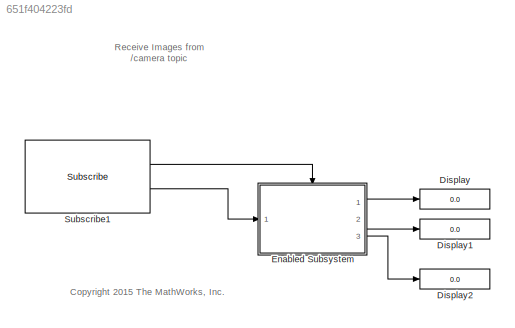
MODEL slx_651f404223fd
KIND model
CONFIG AbsTol = auto
CONFIG EnableMultiTasking = on
CONFIG FixedStep = auto
CONFIG MaxStep = auto
CONFIG MinStep = auto
CONFIG RelTol = 1e-3
CONFIG SampleTimeConstraint = Unconstrained
CONFIG Solver = VariableStepAuto
CONFIG SolverName = VariableStepAuto
CONFIG StartTime = 0.0
CONFIG StopTime = inf
WORKSPACE source: MAT-file member
WORKSPACE SL_ROS_VariableLengthArrays_MaxSizes: struct (value not decoded)
BLOCK [Display] Display
  Decimation = 1
  Ports = [1]
BLOCK [Display] Display1
  Decimation = 1
  Ports = [1]
BLOCK [Display] Display2
  Decimation = 1
  Ports = [1]
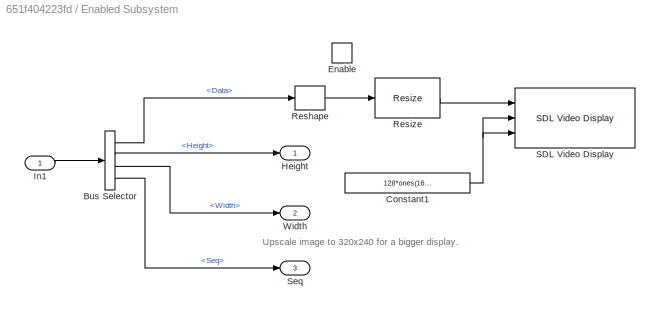
BLOCK [SubSystem] Enabled Subsystem
  Ports = [1, 3, 1]
  RequestExecContextInheritance = off
BLOCK [BusSelector] Enabled Subsystem/Bus Selector
  DialogController = Simulink.DDGSource_BusSelector
  OutputAsBus = off
  OutputSignals = Data,Height,Width,Header.Seq
  Ports = [1, 4]
BLOCK [Constant] Enabled Subsystem/Constant1
  Value = 128*ones(160,240,'uint8')
BLOCK [EnablePort] Enabled Subsystem/Enable
  Ports = []
BLOCK [Outport] Enabled Subsystem/Height
  IconDisplay = Port number
BLOCK [Inport] Enabled Subsystem/In1
  IconDisplay = Port number
BLOCK [Reshape] Enabled Subsystem/Reshape
  OutputDimensionality = Customize
  OutputDimensions = [160,120]
  Ports = [1, 1]
BLOCK [Reference] Enabled Subsystem/Resize  REF=visiongeotforms/Resize
  Ports = [1, 1]
  SourceBlock = visiongeotforms/Resize
  SourceProductBaseCode = VP
  SourceProductName = Computer Vision System Toolbox
  SourceType = Resize
BLOCK [Reference] Enabled Subsystem/SDL Video Display  REF=embdlinuxlib/SDL Video Display
  Ports = [3]
  SourceBlock = embdlinuxlib/SDL Video Display
  SourceProductBaseCode = RASPPI
  SourceProductName = Simulink Support Package for Raspberry Pi Hardware
  SourceType = SDL Video Display
BLOCK [Outport] Enabled Subsystem/Seq
  IconDisplay = Port number
  Port = 3
BLOCK [Outport] Enabled Subsystem/Width
  IconDisplay = Port number
  Port = 2
BLOCK [Reference] Subscribe1  REF=robotlib/Subscribe
  Ports = [0, 2]
  SourceBlock = robotlib/Subscribe
  SourceProductBaseCode = RO
  SourceProductName = Robotics System Toolbox
  SourceType = ROS Subscribe
ANNOTATION (root): <copyright redacted>
ANNOTATION (root): Receive Images from /camera topic
ANNOTATION Enabled Subsystem: Upscale image to 320x240 for a bigger display.
LINE Enabled Subsystem/Bus Selector:1 -> Enabled Subsystem/Reshape:1
LINE Enabled Subsystem/Bus Selector:2 -> Enabled Subsystem/Height:1
LINE Enabled Subsystem/Bus Selector:3 -> Enabled Subsystem/Width:1
LINE Enabled Subsystem/Bus Selector:4 -> Enabled Subsystem/Seq:1
NET Enabled Subsystem/Constant1:1 -> Enabled Subsystem/SDL Video Display:2, Enabled Subsystem/SDL Video Display:3
LINE Enabled Subsystem/In1:1 -> Enabled Subsystem/Bus Selector:1
LINE Enabled Subsystem/Reshape:1 -> Enabled Subsystem/Resize:1
LINE Enabled Subsystem/Resize:1 -> Enabled Subsystem/SDL Video Display:1
LINE Enabled Subsystem:1 -> Display:1
LINE Enabled Subsystem:2 -> Display1:1
LINE Enabled Subsystem:3 -> Display2:1
LINE Subscribe1:1 -> Enabled Subsystem:enable
LINE Subscribe1:2 -> Enabled Subsystem:1
note: NET lines group one-source signal fan-out (src -> all destinations, sorted); 1:1 wires keep LINE
